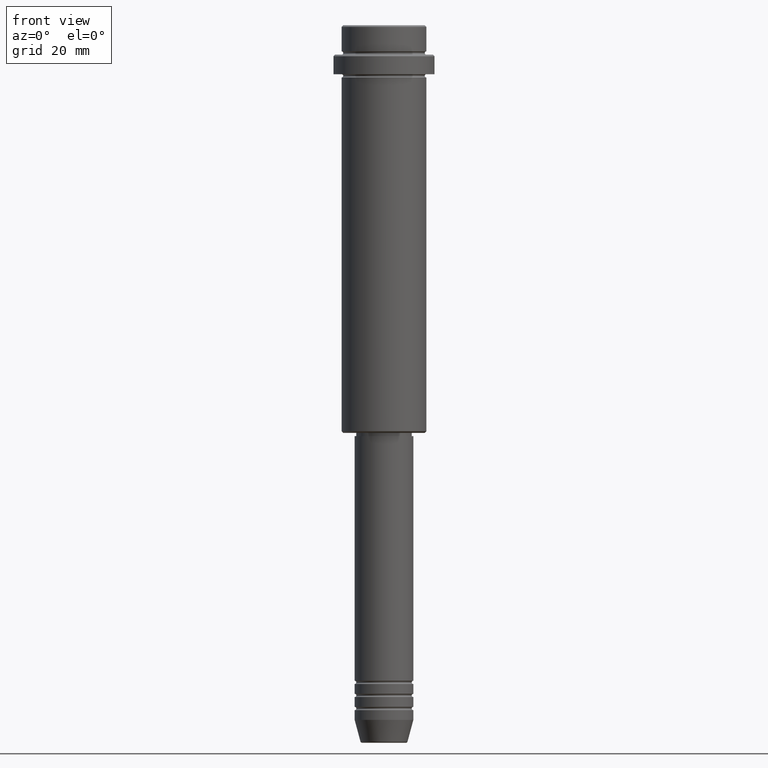
[diagram: clean part render]
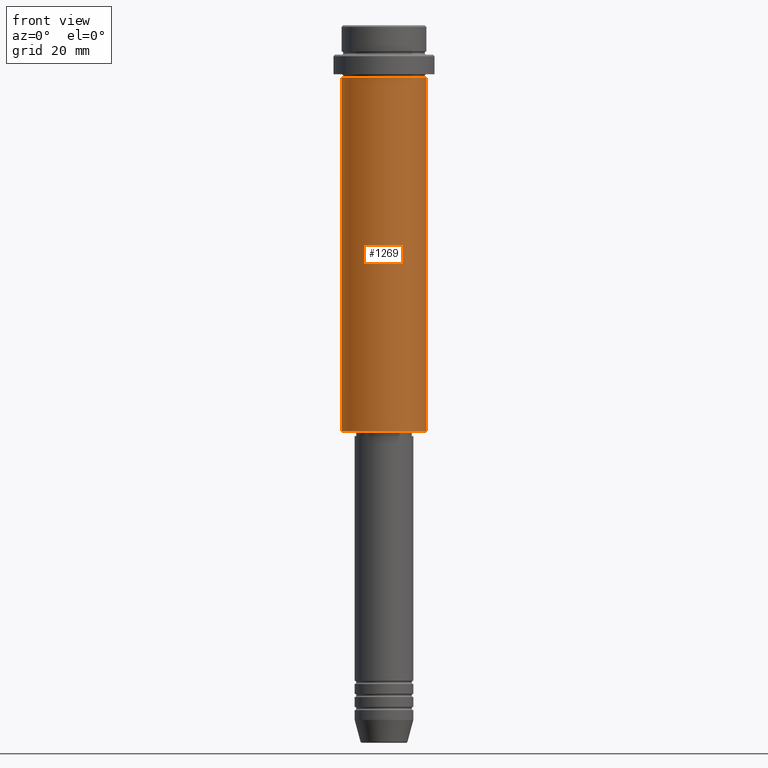
[diagram: same view with one face highlighted and labeled with its STEP entity id]
A machine part, front view. The second image highlights one B-rep face of the part: STEP entity #1269.
In plain terms, the highlighted cylindrical surface (partial cylindrical patch) has radius 13 mm, axis along (-0, -0, 1).
Its self-contained STEP definition (entity closure, byte-faithful):
#16 = DIRECTION ( 'NONE',  ( 1.000000000000000000, 0.000000000000000000, 0.000000000000000000 ) ) ;
#25 = AXIS2_PLACEMENT_3D ( 'NONE', #727, #536, #511 ) ;
#36 = LINE ( 'NONE', #858, #983 ) ;
#132 = CARTESIAN_POINT ( 'NONE',  ( 13.00000000000000000, 0.000000000000000000, -16.00000000000000000 ) ) ;
#184 = VERTEX_POINT ( 'NONE', #768 ) ;
#229 = DIRECTION ( 'NONE',  ( -0.000000000000000000, -0.000000000000000000, 1.000000000000000000 ) ) ;
#230 = AXIS2_PLACEMENT_3D ( 'NONE', #1240, #1359, #708 ) ;
#236 = FACE_OUTER_BOUND ( 'NONE', #330, .T. ) ;
#272 = VERTEX_POINT ( 'NONE', #788 ) ;
#320 = CYLINDRICAL_SURFACE ( 'NONE', #1047, 13.00000000000000000 ) ;
#330 = EDGE_LOOP ( 'NONE', ( #1094, #1368, #1070, #524 ) ) ;
#433 = CIRCLE ( 'NONE', #25, 13.00000000000000000 ) ;
#511 = DIRECTION ( 'NONE',  ( -1.000000000000000000, 0.000000000000000000, 0.000000000000000000 ) ) ;
#524 = ORIENTED_EDGE ( 'NONE', *, *, #971, .F. ) ;
#536 = DIRECTION ( 'NONE',  ( -0.000000000000000000, -0.000000000000000000, 1.000000000000000000 ) ) ;
#700 = VERTEX_POINT ( 'NONE', #838 ) ;
#708 = DIRECTION ( 'NONE',  ( 1.000000000000000000, 0.000000000000000000, 0.000000000000000000 ) ) ;
#727 = CARTESIAN_POINT ( 'NONE',  ( 0.000000000000000000, 0.000000000000000000, -124.4999999999999716 ) ) ;
#768 = CARTESIAN_POINT ( 'NONE',  ( -13.00000000000000000, 1.592040838891559095E-15, -124.4999999999999716 ) ) ;
#788 = CARTESIAN_POINT ( 'NONE',  ( 13.00000000000000000, 0.000000000000000000, -124.4999999999999716 ) ) ;
#838 = CARTESIAN_POINT ( 'NONE',  ( -13.00000000000000000, 1.592040838891559095E-15, -16.00000000000000000 ) ) ;
#858 = CARTESIAN_POINT ( 'NONE',  ( 13.00000000000000000, 0.000000000000000000, 0.000000000000000000 ) ) ;
#880 = VERTEX_POINT ( 'NONE', #132 ) ;
#884 = DIRECTION ( 'NONE',  ( -0.000000000000000000, -0.000000000000000000, 1.000000000000000000 ) ) ;
#908 = EDGE_CURVE ( 'NONE', #272, #880, #36, .T. ) ;
#971 = EDGE_CURVE ( 'NONE', #700, #880, #1282, .T. ) ;
#983 = VECTOR ( 'NONE', #1316, 1000.000000000000000 ) ;
#997 = CARTESIAN_POINT ( 'NONE',  ( 0.000000000000000000, 0.000000000000000000, 0.000000000000000000 ) ) ;
#1038 = EDGE_CURVE ( 'NONE', #184, #272, #433, .T. ) ;
#1047 = AXIS2_PLACEMENT_3D ( 'NONE', #997, #229, #16 ) ;
#1070 = ORIENTED_EDGE ( 'NONE', *, *, #908, .T. ) ;
#1086 = CARTESIAN_POINT ( 'NONE',  ( -13.00000000000000000, 1.592040838891559095E-15, 0.000000000000000000 ) ) ;
#1094 = ORIENTED_EDGE ( 'NONE', *, *, #1258, .F. ) ;
#1219 = LINE ( 'NONE', #1086, #1366 ) ;
#1240 = CARTESIAN_POINT ( 'NONE',  ( 0.000000000000000000, 0.000000000000000000, -16.00000000000000000 ) ) ;
#1258 = EDGE_CURVE ( 'NONE', #184, #700, #1219, .T. ) ;
#1269 = ADVANCED_FACE ( 'NONE', ( #236 ), #320, .T. ) ;
#1282 = CIRCLE ( 'NONE', #230, 13.00000000000000000 ) ;
#1316 = DIRECTION ( 'NONE',  ( -0.000000000000000000, -0.000000000000000000, 1.000000000000000000 ) ) ;
#1359 = DIRECTION ( 'NONE',  ( -0.000000000000000000, -0.000000000000000000, 1.000000000000000000 ) ) ;
#1366 = VECTOR ( 'NONE', #884, 1000.000000000000000 ) ;
#1368 = ORIENTED_EDGE ( 'NONE', *, *, #1038, .T. ) ;